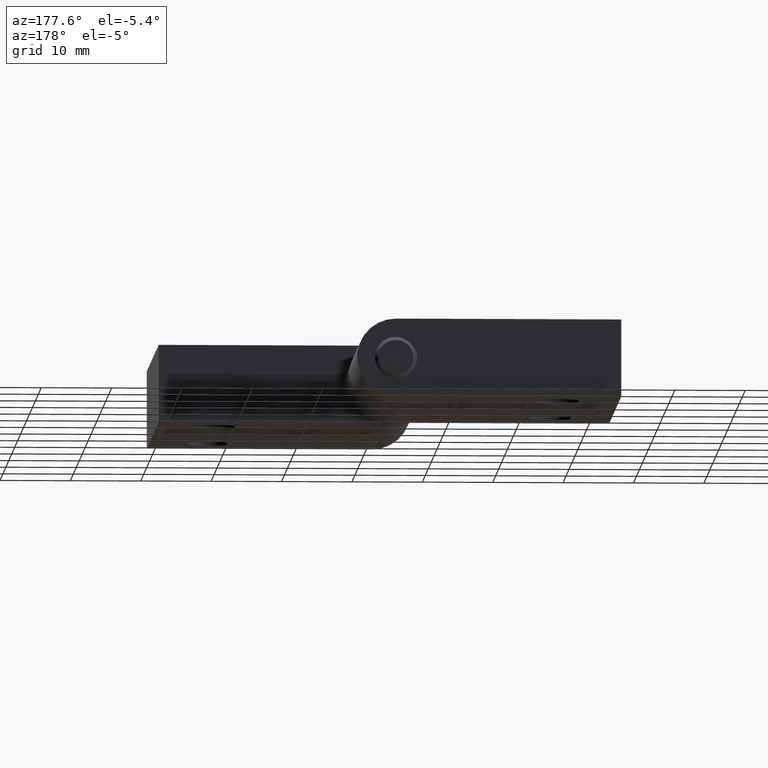
[diagram: clean part render]
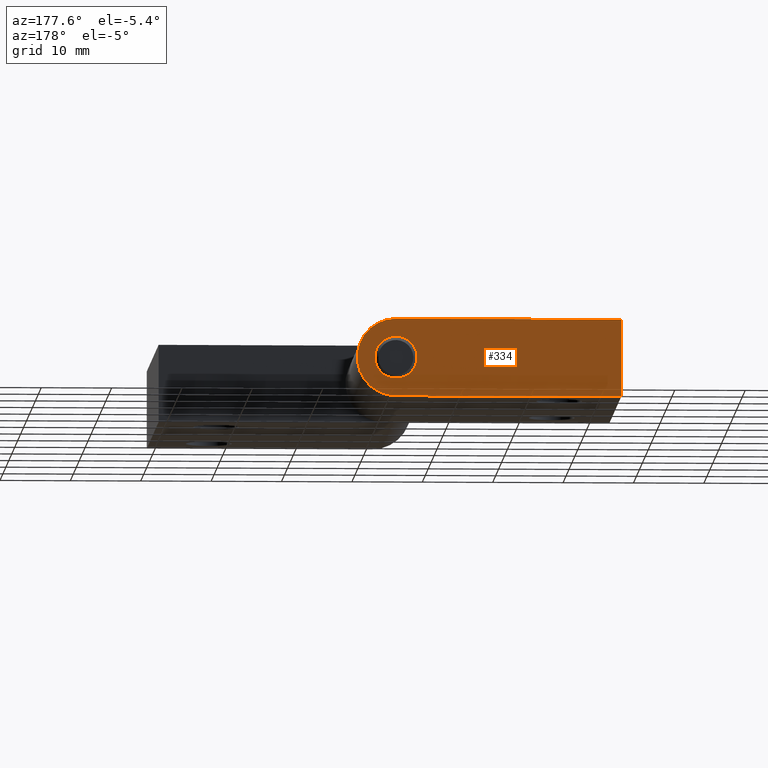
[diagram: same view with one face highlighted and labeled with its STEP entity id]
A machine part, auxiliary view. The second image highlights one B-rep face of the part: STEP entity #334.
In plain terms, the highlighted planar face has unit normal (-0, -1, 0).
Its self-contained STEP definition (entity closure, byte-faithful):
#43=FACE_BOUND('',#90,.T.);
#52=PLANE('',#455);
#65=FACE_OUTER_BOUND('',#89,.T.);
#89=EDGE_LOOP('',(#256,#257,#258,#259));
#90=EDGE_LOOP('',(#260));
#119=LINE('',#633,#139);
#122=LINE('',#643,#142);
#123=LINE('',#644,#143);
#139=VECTOR('',#515,10.);
#142=VECTOR('',#524,10.);
#143=VECTOR('',#525,11.9999759999521);
#156=CIRCLE('',#447,3.);
#159=CIRCLE('',#451,5.49998799997604);
#176=VERTEX_POINT('',#617);
#180=VERTEX_POINT('',#626);
#181=VERTEX_POINT('',#628);
#182=VERTEX_POINT('',#632);
#186=VERTEX_POINT('',#642);
#202=EDGE_CURVE('',#176,#176,#156,.T.);
#207=EDGE_CURVE('',#181,#180,#159,.T.);
#209=EDGE_CURVE('',#182,#181,#119,.T.);
#214=EDGE_CURVE('',#180,#186,#122,.T.);
#215=EDGE_CURVE('',#182,#186,#123,.T.);
#256=ORIENTED_EDGE('',*,*,#214,.T.);
#257=ORIENTED_EDGE('',*,*,#215,.F.);
#258=ORIENTED_EDGE('',*,*,#209,.T.);
#259=ORIENTED_EDGE('',*,*,#207,.T.);
#260=ORIENTED_EDGE('',*,*,#202,.T.);
#334=ADVANCED_FACE('',(#65,#43),#52,.F.);
#447=AXIS2_PLACEMENT_3D('',#618,#500,#501);
#451=AXIS2_PLACEMENT_3D('',#629,#510,#511);
#455=AXIS2_PLACEMENT_3D('',#641,#522,#523);
#500=DIRECTION('center_axis',(0.,1.,0.));
#501=DIRECTION('ref_axis',(1.,0.,0.));
#510=DIRECTION('center_axis',(0.,-1.,0.));
#511=DIRECTION('ref_axis',(0.,0.,1.));
#515=DIRECTION('',(-1.,0.,0.));
#522=DIRECTION('center_axis',(0.,1.,0.));
#523=DIRECTION('ref_axis',(0.,0.,1.));
#524=DIRECTION('',(1.,0.,0.));
#525=DIRECTION('',(0.,0.,-1.));
#617=CARTESIAN_POINT('',(5.49989699988602,32.4998549997101,5.99998799997605));
#618=CARTESIAN_POINT('Origin',(8.49989699988602,32.4998549997101,5.99998799997605));
#626=CARTESIAN_POINT('',(8.49989699988602,32.4998549997101,0.500000000000009));
#628=CARTESIAN_POINT('',(8.49989699988602,32.4998549997101,11.4999759999521));
#629=CARTESIAN_POINT('Origin',(8.49989699988602,32.4998549997101,5.99998799997605));
#632=CARTESIAN_POINT('',(40.499896999886,32.4998549997101,11.4999759999521));
#633=CARTESIAN_POINT('',(13.999896999886,32.4998549997101,11.4999759999521));
#641=CARTESIAN_POINT('Origin',(1.49999354466354,32.4998549997101,13.1999793947969));
#642=CARTESIAN_POINT('',(40.499896999886,32.4998549997101,0.500000000000004));
#643=CARTESIAN_POINT('',(13.249966072143,32.4998549997101,0.500000000000005));
#644=CARTESIAN_POINT('',(40.499896999886,32.4998549997101,11.9999759999521));